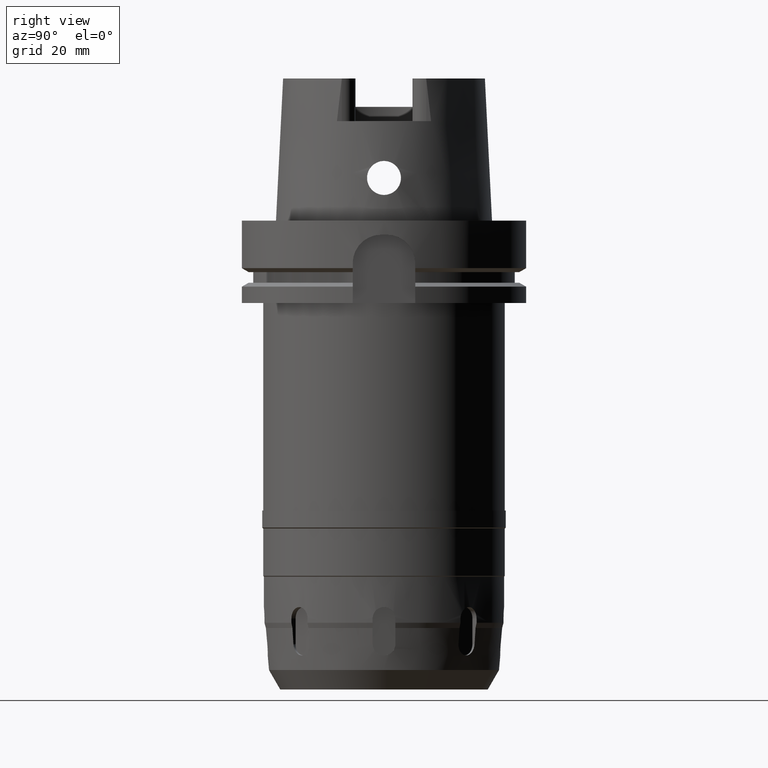
[diagram: clean part render]
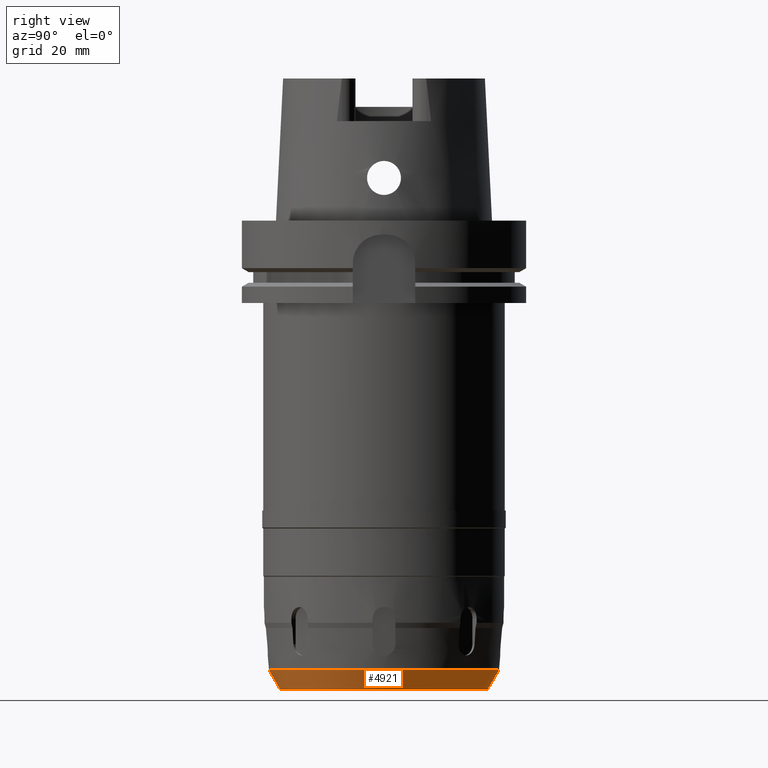
[diagram: same view with one face highlighted and labeled with its STEP entity id]
A machine part, right view. The second image highlights one B-rep face of the part: STEP entity #4921.
In plain terms, the highlighted conical surface has half-angle 30 deg.
Its self-contained STEP definition (entity closure, byte-faithful):
#993=CARTESIAN_POINT('',(0.E0,0.E0,-1.65E2));
#994=DIRECTION('',(0.E0,0.E0,1.E0));
#995=DIRECTION('',(0.E0,-1.E0,0.E0));
#996=AXIS2_PLACEMENT_3D('',#993,#994,#995);
#1025=DIRECTION('',(0.E0,-5.E-1,-8.660254037844E-1));
#1026=VECTOR('',#1025,7.914317490053E0);
#1027=CARTESIAN_POINT('',(0.E0,4.045715874503E1,-1.58146E2));
#1028=LINE('',#1027,#1026);
#1032=CARTESIAN_POINT('',(0.E0,0.E0,-1.58146E2));
#1033=DIRECTION('',(0.E0,0.E0,1.E0));
#1034=DIRECTION('',(0.E0,-1.E0,0.E0));
#1035=AXIS2_PLACEMENT_3D('',#1032,#1033,#1034);
#1040=DIRECTION('',(6.608290360780E-14,5.E-1,-8.660254037844E-1));
#1041=VECTOR('',#1040,7.914317490053E0);
#1042=CARTESIAN_POINT('',(-5.259856151318E-13,-4.045715874503E1,-1.58146E2));
#1043=LINE('',#1042,#1041);
#3812=CARTESIAN_POINT('',(0.E0,-3.65E1,-1.65E2));
#3813=CARTESIAN_POINT('',(0.E0,3.65E1,-1.65E2));
#3814=VERTEX_POINT('',#3812);
#3815=VERTEX_POINT('',#3813);
#3816=CARTESIAN_POINT('',(0.E0,4.045715874503E1,-1.58146E2));
#3817=VERTEX_POINT('',#3816);
#3818=CARTESIAN_POINT('',(-5.259856151318E-13,-4.045715874503E1,-1.58146E2));
#3819=VERTEX_POINT('',#3818);
#4907=CARTESIAN_POINT('',(0.E0,0.E0,-1.61573E2));
#4908=DIRECTION('',(0.E0,0.E0,1.E0));
#4909=DIRECTION('',(0.E0,1.E0,0.E0));
#4910=AXIS2_PLACEMENT_3D('',#4907,#4908,#4909);
#4911=CONICAL_SURFACE('',#4910,3.847857937251E1,3.E1);
#4913=ORIENTED_EDGE('',*,*,#4912,.T.);
#4914=ORIENTED_EDGE('',*,*,#4896,.F.);
#4916=ORIENTED_EDGE('',*,*,#4915,.F.);
#4918=ORIENTED_EDGE('',*,*,#4917,.T.);
#4919=EDGE_LOOP('',(#4913,#4914,#4916,#4918));
#4920=FACE_OUTER_BOUND('',#4919,.F.);
#997=CIRCLE('',#996,3.65E1);
#1036=CIRCLE('',#1035,4.045715874502E1);
#4896=EDGE_CURVE('',#3814,#3815,#997,.T.);
#4912=EDGE_CURVE('',#3817,#3815,#1028,.T.);
#4915=EDGE_CURVE('',#3819,#3814,#1043,.T.);
#4917=EDGE_CURVE('',#3819,#3817,#1036,.T.);
#4921=ADVANCED_FACE('',(#4920),#4911,.T.);